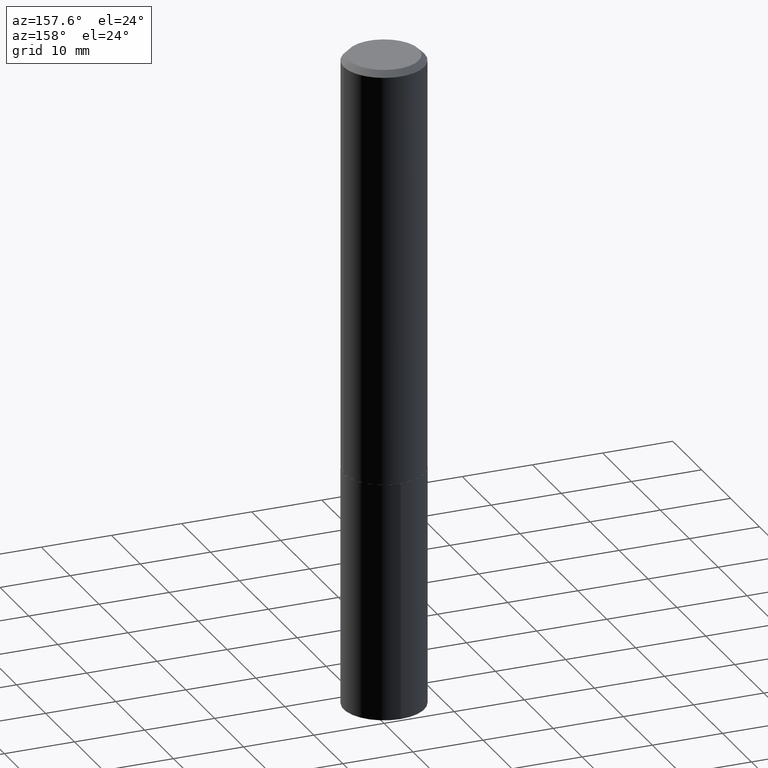
[diagram: clean part render]
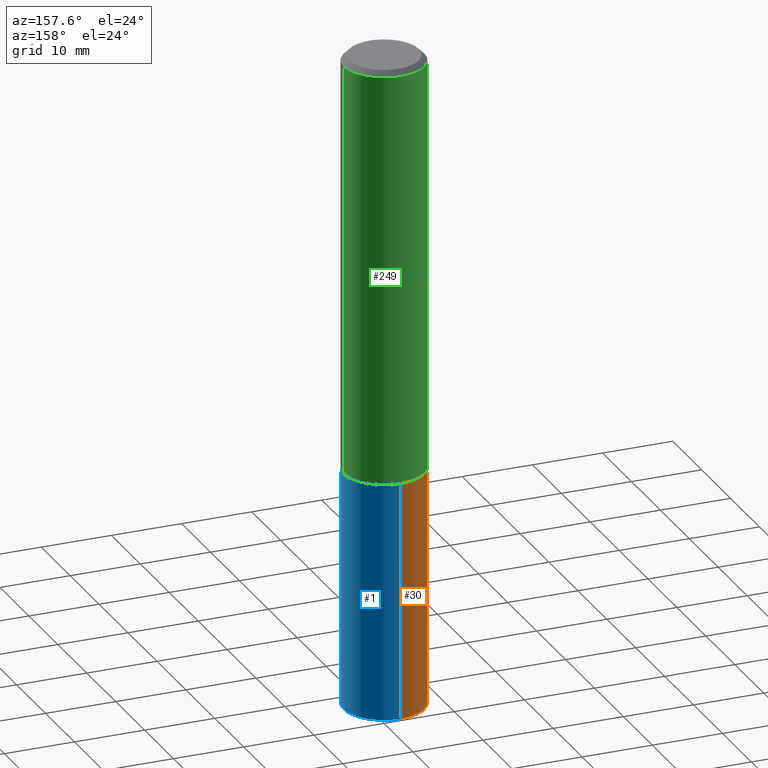
[diagram: same view with three faces highlighted in distinct colors, each labeled with its STEP entity id]
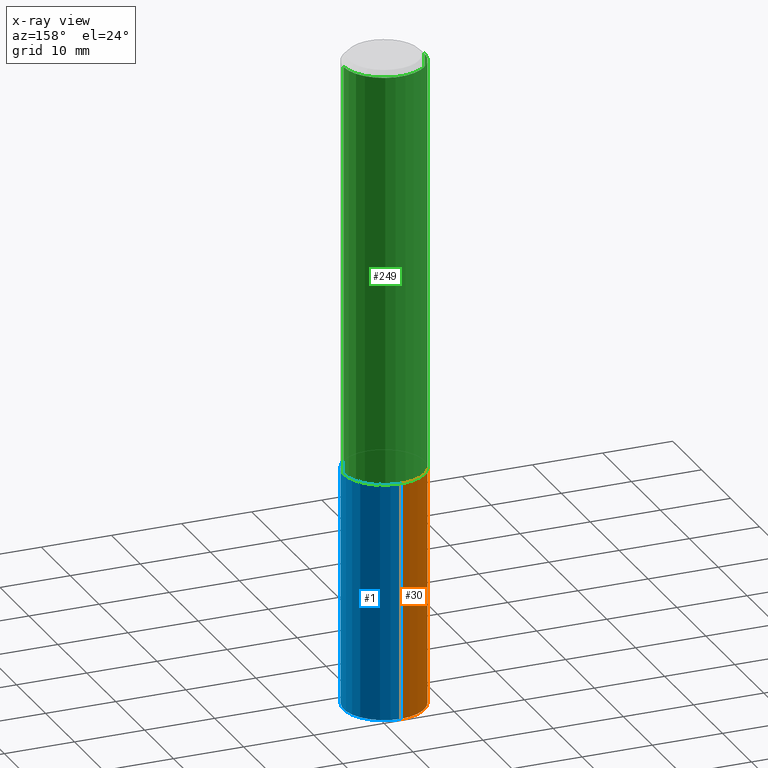
[diagram: x-ray of the same camera — body ghosted, the three highlighted faces saturated]
A machine part, auxiliary view with three faces highlighted in distinct colors.
The next image is the same camera in x-ray (body ghosted, the three faces saturated) — at least one of them is partly hidden behind the body in this view.
Their STEP definitions:

[orange] entity #30 — the highlighted cylindrical surface (partial cylindrical patch) has radius 5.7506 mm, axis along (-0, 0, 1).
#5 = LINE ( 'NONE', #368, #215 ) ;
#15 = DIRECTION ( 'NONE',  ( -2.445529673311821872E-29, 3.491394173653390530E-15, 1.000000000000000000 ) ) ;
#19 = FACE_OUTER_BOUND ( 'NONE', #127, .T. ) ;
#30 = ADVANCED_FACE ( 'NONE', ( #19 ), #383, .T. ) ;
#40 = VECTOR ( 'NONE', #289, 39.37007874015748143 ) ;
#65 = AXIS2_PLACEMENT_3D ( 'NONE', #264, #15, #204 ) ;
#72 = CARTESIAN_POINT ( 'NONE',  ( 1.608668753760956681E-15, 0.2263999999999871671, -3.679536302833595673 ) ) ;
#73 = AXIS2_PLACEMENT_3D ( 'NONE', #164, #135, #265 ) ;
#79 = CIRCLE ( 'NONE', #209, 0.2263999999999999624 ) ;
#89 = DIRECTION ( 'NONE',  ( -2.445529673311821591E-29, 3.491394173653390530E-15, 1.000000000000000000 ) ) ;
#92 = CARTESIAN_POINT ( 'NONE',  ( 5.728755225369301801E-29, -8.179144184373953531E-15, -2.342600000000000016 ) ) ;
#99 = EDGE_CURVE ( 'NONE', #315, #303, #79, .T. ) ;
#109 = VERTEX_POINT ( 'NONE', #72 ) ;
#127 = EDGE_LOOP ( 'NONE', ( #277, #165, #207, #143 ) ) ;
#130 = EDGE_CURVE ( 'NONE', #109, #361, #238, .T. ) ;
#135 = DIRECTION ( 'NONE',  ( -2.445529673311821872E-29, 3.491394173653390530E-15, 1.000000000000000000 ) ) ;
#143 = ORIENTED_EDGE ( 'NONE', *, *, #99, .F. ) ;
#146 = CARTESIAN_POINT ( 'NONE',  ( -1.580942750228113237E-15, -0.2264000000000081780, -2.342599999999999127 ) ) ;
#152 = CARTESIAN_POINT ( 'NONE',  ( -1.580942750228113237E-15, -0.2264000000000081780, -2.342599999999999127 ) ) ;
#164 = CARTESIAN_POINT ( 'NONE',  ( 5.728755225369301801E-29, -8.179144184373953531E-15, -2.342600000000000016 ) ) ;
#165 = ORIENTED_EDGE ( 'NONE', *, *, #130, .T. ) ;
#202 = EDGE_CURVE ( 'NONE', #361, #303, #252, .T. ) ;
#204 = DIRECTION ( 'NONE',  ( -6.982962677686265922E-15, -1.000000000000000000, 2.413293280622141084E-15 ) ) ;
#207 = ORIENTED_EDGE ( 'NONE', *, *, #202, .T. ) ;
#209 = AXIS2_PLACEMENT_3D ( 'NONE', #92, #348, #217 ) ;
#215 = VECTOR ( 'NONE', #89, 39.37007874015748143 ) ;
#217 = DIRECTION ( 'NONE',  ( -6.982962677686265922E-15, -1.000000000000000000, 3.619939920933211627E-15 ) ) ;
#238 = CIRCLE ( 'NONE', #65, 0.2263999999999999624 ) ;
#252 = LINE ( 'NONE', #152, #40 ) ;
#256 = CARTESIAN_POINT ( 'NONE',  ( -1.580942750228080697E-15, -0.2264000000000128410, -3.679536302833594785 ) ) ;
#264 = CARTESIAN_POINT ( 'NONE',  ( 8.998272625276659076E-29, -1.284691580263287226E-14, -3.679536302833595229 ) ) ;
#265 = DIRECTION ( 'NONE',  ( -6.982962677686265922E-15, -1.000000000000000000, 3.619939920933211627E-15 ) ) ;
#277 = ORIENTED_EDGE ( 'NONE', *, *, #345, .F. ) ;
#284 = CARTESIAN_POINT ( 'NONE',  ( 1.608668753760956681E-15, 0.2263999999999917745, -2.342600000000000904 ) ) ;
#289 = DIRECTION ( 'NONE',  ( -2.445529673311821591E-29, 3.491394173653390530E-15, 1.000000000000000000 ) ) ;
#303 = VERTEX_POINT ( 'NONE', #146 ) ;
#315 = VERTEX_POINT ( 'NONE', #284 ) ;
#345 = EDGE_CURVE ( 'NONE', #109, #315, #5, .T. ) ;
#348 = DIRECTION ( 'NONE',  ( -2.445529673311821872E-29, 3.491394173653390530E-15, 1.000000000000000000 ) ) ;
#361 = VERTEX_POINT ( 'NONE', #256 ) ;
#368 = CARTESIAN_POINT ( 'NONE',  ( 1.608668753760923746E-15, 0.2263999999999917745, -2.342600000000000904 ) ) ;
#383 = CYLINDRICAL_SURFACE ( 'NONE', #73, 0.2263999999999999624 ) ;

[blue] entity #1 — the highlighted cylindrical surface (partial cylindrical patch) has radius 5.7506 mm, axis along (-0, 0, 1).
#1 = ADVANCED_FACE ( 'NONE', ( #290 ), #223, .T. ) ;
#5 = LINE ( 'NONE', #368, #215 ) ;
#8 = AXIS2_PLACEMENT_3D ( 'NONE', #259, #189, #298 ) ;
#18 = DIRECTION ( 'NONE',  ( -2.445529673311821872E-29, 3.491394173653390530E-15, 1.000000000000000000 ) ) ;
#28 = EDGE_LOOP ( 'NONE', ( #131, #364, #321, #311 ) ) ;
#31 = DIRECTION ( 'NONE',  ( -6.982962677686265922E-15, -1.000000000000000000, 3.619939920933211627E-15 ) ) ;
#38 = AXIS2_PLACEMENT_3D ( 'NONE', #71, #138, #31 ) ;
#40 = VECTOR ( 'NONE', #289, 39.37007874015748143 ) ;
#71 = CARTESIAN_POINT ( 'NONE',  ( 5.728755225369301801E-29, -8.179144184373953531E-15, -2.342600000000000016 ) ) ;
#72 = CARTESIAN_POINT ( 'NONE',  ( 1.608668753760956681E-15, 0.2263999999999871671, -3.679536302833595673 ) ) ;
#78 = DIRECTION ( 'NONE',  ( -6.982962677686265922E-15, -1.000000000000000000, 3.619939920933211627E-15 ) ) ;
#89 = DIRECTION ( 'NONE',  ( -2.445529673311821591E-29, 3.491394173653390530E-15, 1.000000000000000000 ) ) ;
#109 = VERTEX_POINT ( 'NONE', #72 ) ;
#110 = EDGE_CURVE ( 'NONE', #361, #109, #282, .T. ) ;
#131 = ORIENTED_EDGE ( 'NONE', *, *, #110, .T. ) ;
#138 = DIRECTION ( 'NONE',  ( -2.445529673311821872E-29, 3.491394173653390530E-15, 1.000000000000000000 ) ) ;
#146 = CARTESIAN_POINT ( 'NONE',  ( -1.580942750228113237E-15, -0.2264000000000081780, -2.342599999999999127 ) ) ;
#151 = EDGE_CURVE ( 'NONE', #303, #315, #230, .T. ) ;
#152 = CARTESIAN_POINT ( 'NONE',  ( -1.580942750228113237E-15, -0.2264000000000081780, -2.342599999999999127 ) ) ;
#189 = DIRECTION ( 'NONE',  ( -2.445529673311821872E-29, 3.491394173653390530E-15, 1.000000000000000000 ) ) ;
#202 = EDGE_CURVE ( 'NONE', #361, #303, #252, .T. ) ;
#215 = VECTOR ( 'NONE', #89, 39.37007874015748143 ) ;
#223 = CYLINDRICAL_SURFACE ( 'NONE', #38, 0.2263999999999999624 ) ;
#230 = CIRCLE ( 'NONE', #271, 0.2263999999999999624 ) ;
#252 = LINE ( 'NONE', #152, #40 ) ;
#256 = CARTESIAN_POINT ( 'NONE',  ( -1.580942750228080697E-15, -0.2264000000000128410, -3.679536302833594785 ) ) ;
#259 = CARTESIAN_POINT ( 'NONE',  ( 8.998272625276659076E-29, -1.284691580263287226E-14, -3.679536302833595229 ) ) ;
#271 = AXIS2_PLACEMENT_3D ( 'NONE', #302, #18, #78 ) ;
#282 = CIRCLE ( 'NONE', #8, 0.2263999999999999624 ) ;
#284 = CARTESIAN_POINT ( 'NONE',  ( 1.608668753760956681E-15, 0.2263999999999917745, -2.342600000000000904 ) ) ;
#289 = DIRECTION ( 'NONE',  ( -2.445529673311821591E-29, 3.491394173653390530E-15, 1.000000000000000000 ) ) ;
#290 = FACE_OUTER_BOUND ( 'NONE', #28, .T. ) ;
#298 = DIRECTION ( 'NONE',  ( -6.982962677686265922E-15, -1.000000000000000000, 2.413293280622141084E-15 ) ) ;
#302 = CARTESIAN_POINT ( 'NONE',  ( 5.728755225369301801E-29, -8.179144184373953531E-15, -2.342600000000000016 ) ) ;
#303 = VERTEX_POINT ( 'NONE', #146 ) ;
#311 = ORIENTED_EDGE ( 'NONE', *, *, #202, .F. ) ;
#315 = VERTEX_POINT ( 'NONE', #284 ) ;
#321 = ORIENTED_EDGE ( 'NONE', *, *, #151, .F. ) ;
#345 = EDGE_CURVE ( 'NONE', #109, #315, #5, .T. ) ;
#361 = VERTEX_POINT ( 'NONE', #256 ) ;
#364 = ORIENTED_EDGE ( 'NONE', *, *, #345, .T. ) ;
#368 = CARTESIAN_POINT ( 'NONE',  ( 1.608668753760923746E-15, 0.2263999999999917745, -2.342600000000000904 ) ) ;

[green] entity #249 — the highlighted cylindrical surface (partial cylindrical patch) has radius 5.7506 mm, axis along (-0, 0, 1).
#4 = VERTEX_POINT ( 'NONE', #174 ) ;
#6 = CARTESIAN_POINT ( 'NONE',  ( -0.2264000000000002399, -6.568729689943663305E-15, -2.342100000000000293 ) ) ;
#12 = DIRECTION ( 'NONE',  ( -2.445468806185136877E-29, 3.491481338843145188E-15, 1.000000000000000000 ) ) ;
#35 = AXIS2_PLACEMENT_3D ( 'NONE', #111, #199, #205 ) ;
#43 = DIRECTION ( 'NONE',  ( -2.445468806185136877E-29, 3.491481338843145188E-15, 1.000000000000000000 ) ) ;
#48 = EDGE_CURVE ( 'NONE', #81, #195, #367, .T. ) ;
#49 = CIRCLE ( 'NONE', #147, 0.2263999999999999624 ) ;
#57 = EDGE_LOOP ( 'NONE', ( #344, #107, #380, #113 ) ) ;
#67 = CARTESIAN_POINT ( 'NONE',  ( 7.642090019328599159E-31, -1.091087918388489774E-16, -0.03125000000000019429 ) ) ;
#70 = CARTESIAN_POINT ( 'NONE',  ( 0.2264000000000001012, -1.580942750228171416E-15, 1.103966422040200291E-29 ) ) ;
#81 = VERTEX_POINT ( 'NONE', #325 ) ;
#103 = CARTESIAN_POINT ( 'NONE',  ( 5.727532490966208999E-29, -8.177398443704531239E-15, -2.342100000000000293 ) ) ;
#105 = EDGE_CURVE ( 'NONE', #81, #137, #349, .T. ) ;
#106 = AXIS2_PLACEMENT_3D ( 'NONE', #103, #114, #229 ) ;
#107 = ORIENTED_EDGE ( 'NONE', *, *, #218, .T. ) ;
#111 = CARTESIAN_POINT ( 'NONE',  ( 0.000000000000000000, 0.000000000000000000, 0.000000000000000000 ) ) ;
#112 = CYLINDRICAL_SURFACE ( 'NONE', #35, 0.2264000000000001012 ) ;
#113 = ORIENTED_EDGE ( 'NONE', *, *, #105, .F. ) ;
#114 = DIRECTION ( 'NONE',  ( -2.445468806185136597E-29, 3.491481338843145583E-15, 1.000000000000000000 ) ) ;
#137 = VERTEX_POINT ( 'NONE', #227 ) ;
#147 = AXIS2_PLACEMENT_3D ( 'NONE', #67, #180, #184 ) ;
#174 = CARTESIAN_POINT ( 'NONE',  ( -0.2263999999999999624, -2.534584864010821841E-15, -0.03125000000000019429 ) ) ;
#180 = DIRECTION ( 'NONE',  ( -2.445468806185136597E-29, 3.491481338843145583E-15, 1.000000000000000000 ) ) ;
#184 = DIRECTION ( 'NONE',  ( 1.000000000000000000, -6.982962677686265922E-15, 0.000000000000000000 ) ) ;
#195 = VERTEX_POINT ( 'NONE', #6 ) ;
#199 = DIRECTION ( 'NONE',  ( -2.445468806185136597E-29, 3.491481338843145583E-15, 1.000000000000000000 ) ) ;
#205 = DIRECTION ( 'NONE',  ( 1.000000000000000000, -6.982962677686266711E-15, 4.876176775795935232E-29 ) ) ;
#210 = CARTESIAN_POINT ( 'NONE',  ( -0.2264000000000001012, 1.608668753760867540E-15, -1.113646904433711261E-29 ) ) ;
#218 = EDGE_CURVE ( 'NONE', #195, #4, #248, .T. ) ;
#227 = CARTESIAN_POINT ( 'NONE',  ( 0.2263999999999999624, -1.690051542067019531E-15, -0.03125000000000019429 ) ) ;
#229 = DIRECTION ( 'NONE',  ( 1.000000000000000000, -6.982962677686269077E-15, 0.000000000000000000 ) ) ;
#248 = LINE ( 'NONE', #210, #292 ) ;
#249 = ADVANCED_FACE ( 'NONE', ( #318 ), #112, .T. ) ;
#292 = VECTOR ( 'NONE', #12, 39.37007874015748143 ) ;
#312 = VECTOR ( 'NONE', #43, 39.37007874015748143 ) ;
#318 = FACE_OUTER_BOUND ( 'NONE', #57, .T. ) ;
#325 = CARTESIAN_POINT ( 'NONE',  ( 0.2264000000000002399, -9.758341193932704824E-15, -2.342100000000000293 ) ) ;
#344 = ORIENTED_EDGE ( 'NONE', *, *, #48, .T. ) ;
#349 = LINE ( 'NONE', #70, #312 ) ;
#365 = EDGE_CURVE ( 'NONE', #137, #4, #49, .T. ) ;
#367 = CIRCLE ( 'NONE', #106, 0.2264000000000002399 ) ;
#380 = ORIENTED_EDGE ( 'NONE', *, *, #365, .F. ) ;